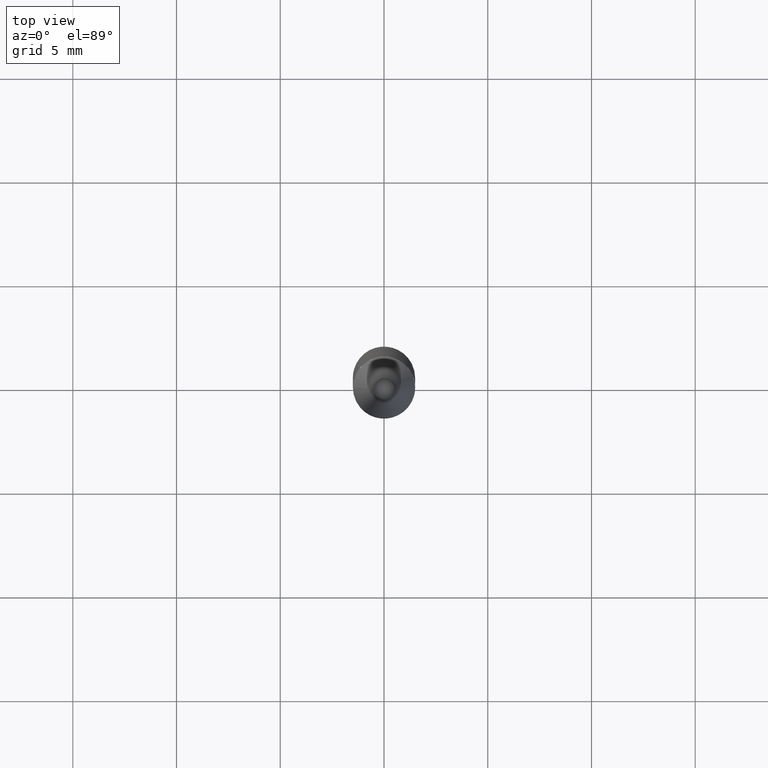
[diagram: clean part render]
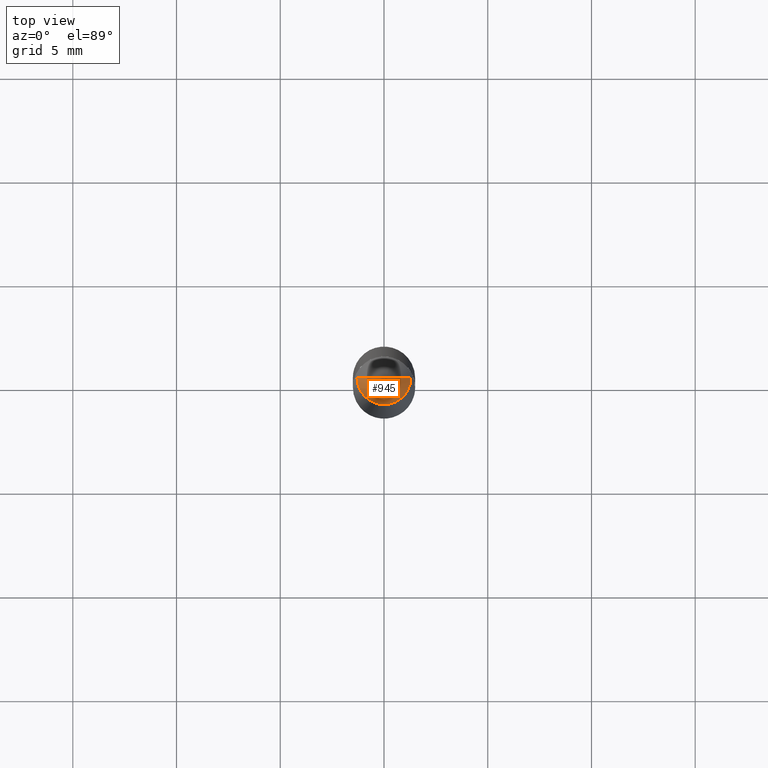
[diagram: same view with one face highlighted and labeled with its STEP entity id]
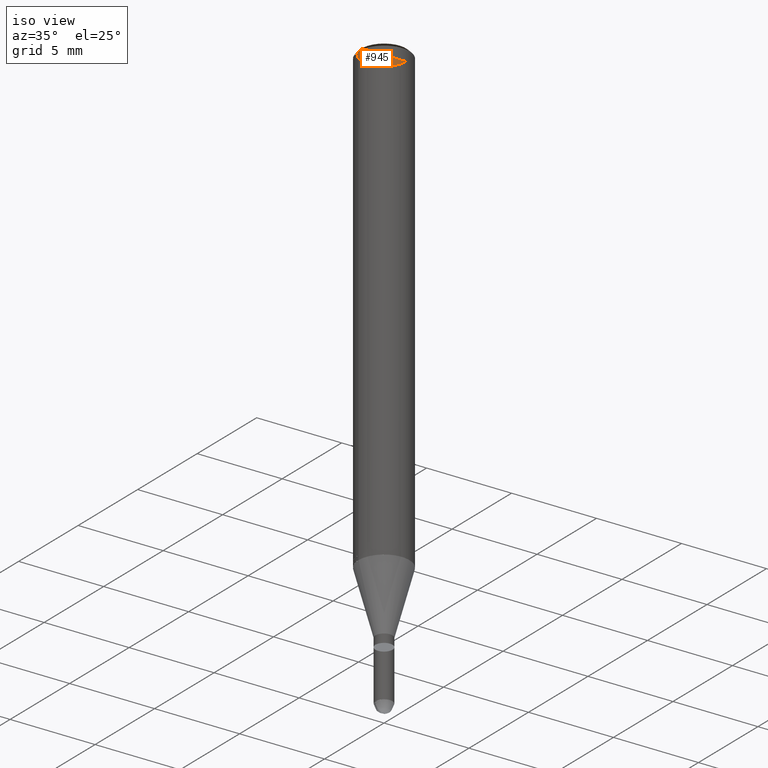
[diagram: same view with one face highlighted and labeled with its STEP entity id]
A machine part, top view. The second image highlights one B-rep face of the part: STEP entity #945.
A second angle (iso view) of the same face is appended — the face is thin or edge-on in the first view.
In plain terms, the highlighted face is a freeform B-spline surface patch.
Its self-contained STEP definition (entity closure, byte-faithful):
#546=CARTESIAN_POINT('',(1.3,0.0,27.0));
#550=CARTESIAN_POINT('',(-1.3,0.0,27.0));
#551=CARTESIAN_POINT('',(0.0,0.0,27.0));
#564=CARTESIAN_POINT('',(-1.3,-1.3,27.0));
#565=CARTESIAN_POINT('',(0.0,-1.3,27.0));
#566=CARTESIAN_POINT('',(1.3,-1.3,27.0));
#930=(
BOUNDED_SURFACE()
B_SPLINE_SURFACE(1,2,(
(#550,#564,#565,#566,#546),
(#551,#551,#551,#551,#551)
), .UNSPECIFIED.,.F.,.F.,.F.)
B_SPLINE_SURFACE_WITH_KNOTS((2,2),(3,2,3),(
0.0,1.0),(
0.0,0.5,1.0), .UNSPECIFIED.)
GEOMETRIC_REPRESENTATION_ITEM()
RATIONAL_B_SPLINE_SURFACE(((1.0,0.707106781187,1.0,0.707106781187,1.0),
(1.0,0.707106781187,1.0,0.707106781187,1.0)
))
REPRESENTATION_ITEM('')
SURFACE()
);
#931=(
BOUNDED_CURVE()
B_SPLINE_CURVE(2,(#546,#566,#565,#564,#550),.UNSPECIFIED.,.F.,.F.)
B_SPLINE_CURVE_WITH_KNOTS((3,2,3),
(0.0,0.5,1.0),.UNSPECIFIED.)
CURVE()
GEOMETRIC_REPRESENTATION_ITEM()
RATIONAL_B_SPLINE_CURVE((1.0,0.707106781187,1.0,0.707106781187,1.0))
REPRESENTATION_ITEM('')
);
#932=(
BOUNDED_CURVE()
B_SPLINE_CURVE(1,(#550,#551),.UNSPECIFIED.,.F.,.F.)
B_SPLINE_CURVE_WITH_KNOTS((2,2),
(0.0,1.0),.UNSPECIFIED.)
CURVE()
GEOMETRIC_REPRESENTATION_ITEM()
RATIONAL_B_SPLINE_CURVE((1.0,1.0))
REPRESENTATION_ITEM('')
);
#933=(
BOUNDED_CURVE()
B_SPLINE_CURVE(1,(#551,#546),.UNSPECIFIED.,.F.,.F.)
B_SPLINE_CURVE_WITH_KNOTS((2,2),
(0.0,1.0),.UNSPECIFIED.)
CURVE()
GEOMETRIC_REPRESENTATION_ITEM()
RATIONAL_B_SPLINE_CURVE((1.0,1.0))
REPRESENTATION_ITEM('')
);
#934=VERTEX_POINT('',#546);
#935=VERTEX_POINT('',#550);
#936=VERTEX_POINT('',#551);
#937=EDGE_CURVE('',#934,#935,#931,.T.);
#938=EDGE_CURVE('',#935,#936,#932,.T.);
#939=EDGE_CURVE('',#936,#934,#933,.T.);
#940=ORIENTED_EDGE('',*,*,#937,.T.);
#941=ORIENTED_EDGE('',*,*,#938,.T.);
#942=ORIENTED_EDGE('',*,*,#939,.T.);
#943=EDGE_LOOP('',(#940,#941,#942));
#944=FACE_OUTER_BOUND('',#943,.T.);
#945=ADVANCED_FACE('',(#944),#930,.T.);